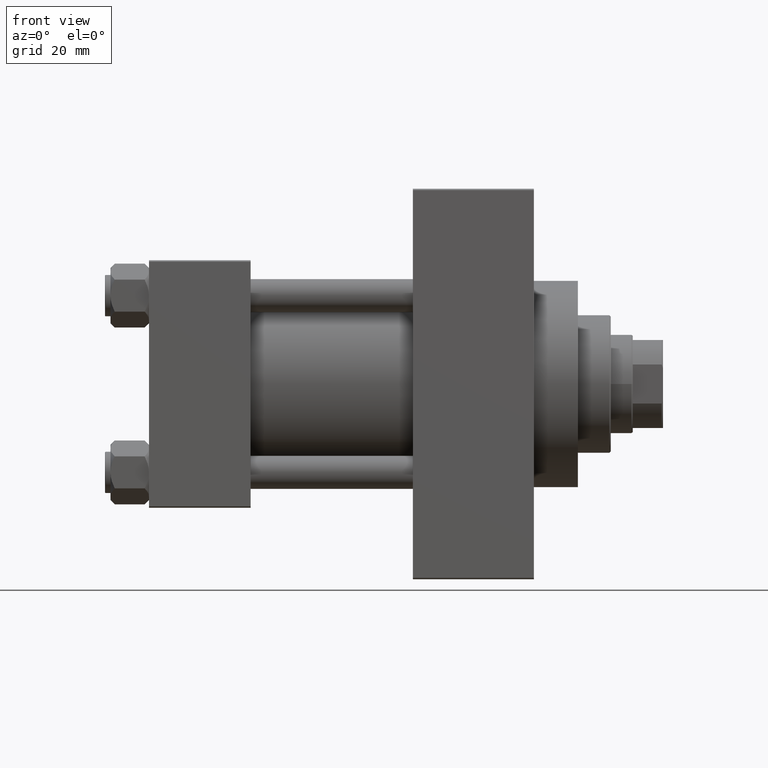
[diagram: clean part render]
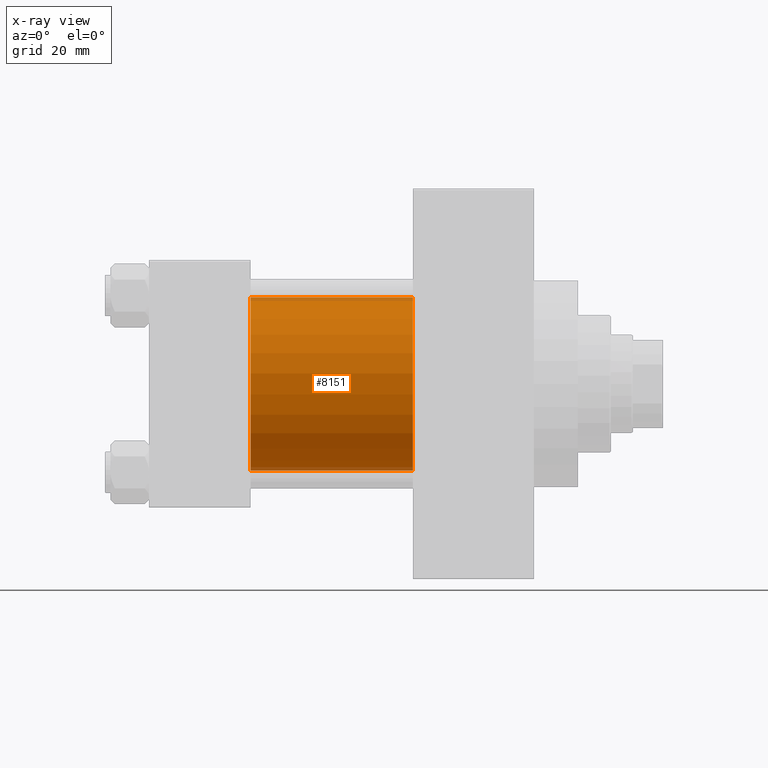
[diagram: x-ray — body ghosted, one internal face saturated and labeled with its STEP entity id]
A machine part, front view, then the same camera in x-ray: the body is ghosted and one INTERNAL B-rep face — a face not visible from any outside direction — is saturated and labeled: STEP entity #8151.
In plain terms, the highlighted cylindrical surface (partial cylindrical patch) has radius 31.5 mm, axis along (-1, -0, -0).
Its self-contained STEP definition (entity closure, byte-faithful):
#125 = AXIS2_PLACEMENT_3D ( 'NONE', #45642, #19412, #34502 ) ;
#708 = CARTESIAN_POINT ( 'NONE',  ( 96.00000000000000000, 1.255552203348951850E-15, -31.50000000000000000 ) ) ;
#2125 = CARTESIAN_POINT ( 'NONE',  ( 37.00000000000000000, 1.255552203348951850E-15, -31.50000000000000000 ) ) ;
#2144 = EDGE_CURVE ( 'NONE', #3651, #26237, #33260, .T. ) ;
#2777 = VECTOR ( 'NONE', #17859, 1000.000000000000000 ) ;
#3651 = VERTEX_POINT ( 'NONE', #40777 ) ;
#7188 = AXIS2_PLACEMENT_3D ( 'NONE', #45797, #38622, #30720 ) ;
#7948 = VERTEX_POINT ( 'NONE', #2125 ) ;
#8151 = ADVANCED_FACE ( 'NONE', ( #15446 ), #19162, .F. ) ;
#8789 = VECTOR ( 'NONE', #27207, 1000.000000000000000 ) ;
#9940 = CARTESIAN_POINT ( 'NONE',  ( 96.00000000000000000, -2.602085213965210642E-15, 31.50000000000000000 ) ) ;
#15446 = FACE_OUTER_BOUND ( 'NONE', #39128, .T. ) ;
#17732 = CARTESIAN_POINT ( 'NONE',  ( 96.00000000000000000, 1.255552203348951850E-15, -31.50000000000000000 ) ) ;
#17859 = DIRECTION ( 'NONE',  ( -1.000000000000000000, -0.000000000000000000, -0.000000000000000000 ) ) ;
#19162 = CYLINDRICAL_SURFACE ( 'NONE', #125, 31.50000000000000000 ) ;
#19412 = DIRECTION ( 'NONE',  ( -1.000000000000000000, -0.000000000000000000, -0.000000000000000000 ) ) ;
#19534 = LINE ( 'NONE', #708, #8789 ) ;
#21006 = DIRECTION ( 'NONE',  ( 0.000000000000000000, 0.000000000000000000, -1.000000000000000000 ) ) ;
#23511 = CARTESIAN_POINT ( 'NONE',  ( 37.00000000000000000, -2.602085213965210642E-15, 31.50000000000000000 ) ) ;
#23908 = ORIENTED_EDGE ( 'NONE', *, *, #46254, .F. ) ;
#26237 = VERTEX_POINT ( 'NONE', #17732 ) ;
#27207 = DIRECTION ( 'NONE',  ( -1.000000000000000000, -0.000000000000000000, -0.000000000000000000 ) ) ;
#27792 = LINE ( 'NONE', #9940, #2777 ) ;
#28479 = AXIS2_PLACEMENT_3D ( 'NONE', #28676, #36823, #21006 ) ;
#28673 = EDGE_CURVE ( 'NONE', #26237, #7948, #19534, .T. ) ;
#28676 = CARTESIAN_POINT ( 'NONE',  ( 37.00000000000000000, -2.602085213965210642E-15, 0.000000000000000000 ) ) ;
#29812 = VERTEX_POINT ( 'NONE', #23511 ) ;
#29886 = EDGE_CURVE ( 'NONE', #29812, #7948, #38717, .T. ) ;
#30720 = DIRECTION ( 'NONE',  ( 0.000000000000000000, 0.000000000000000000, -1.000000000000000000 ) ) ;
#33260 = CIRCLE ( 'NONE', #7188, 31.50000000000000000 ) ;
#34415 = ORIENTED_EDGE ( 'NONE', *, *, #28673, .T. ) ;
#34502 = DIRECTION ( 'NONE',  ( 0.000000000000000000, 0.000000000000000000, 1.000000000000000000 ) ) ;
#36823 = DIRECTION ( 'NONE',  ( 1.000000000000000000, 0.000000000000000000, 0.000000000000000000 ) ) ;
#38622 = DIRECTION ( 'NONE',  ( 1.000000000000000000, 0.000000000000000000, 0.000000000000000000 ) ) ;
#38717 = CIRCLE ( 'NONE', #28479, 31.50000000000000000 ) ;
#39128 = EDGE_LOOP ( 'NONE', ( #47269, #34415, #43032, #23908 ) ) ;
#40777 = CARTESIAN_POINT ( 'NONE',  ( 96.00000000000000000, -2.602085213965210642E-15, 31.50000000000000000 ) ) ;
#43032 = ORIENTED_EDGE ( 'NONE', *, *, #29886, .F. ) ;
#45642 = CARTESIAN_POINT ( 'NONE',  ( 96.00000000000000000, -2.602085213965210642E-15, 0.000000000000000000 ) ) ;
#45797 = CARTESIAN_POINT ( 'NONE',  ( 96.00000000000000000, -2.602085213965210642E-15, 0.000000000000000000 ) ) ;
#46254 = EDGE_CURVE ( 'NONE', #3651, #29812, #27792, .T. ) ;
#47269 = ORIENTED_EDGE ( 'NONE', *, *, #2144, .T. ) ;